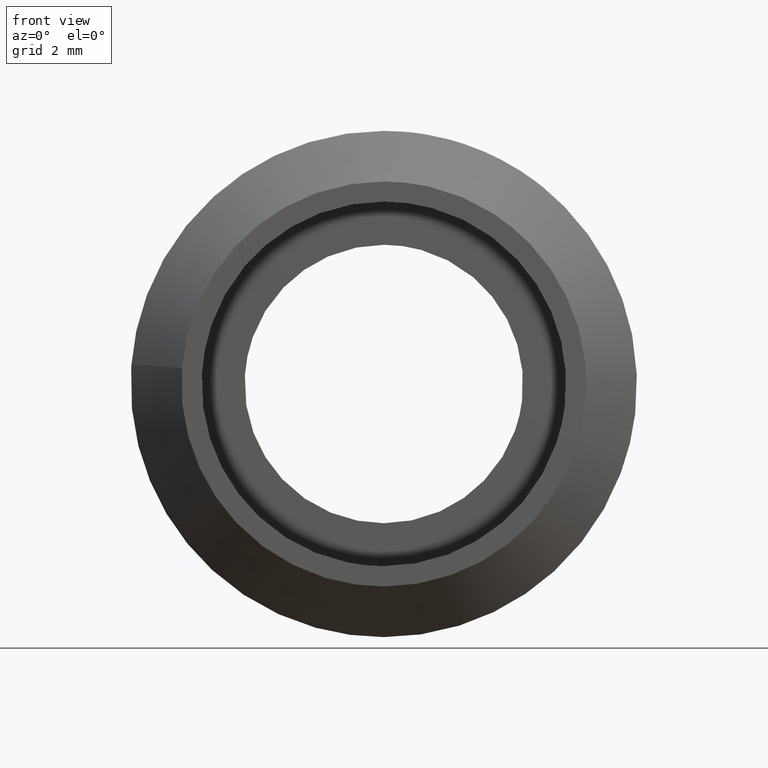
[diagram: clean part render]
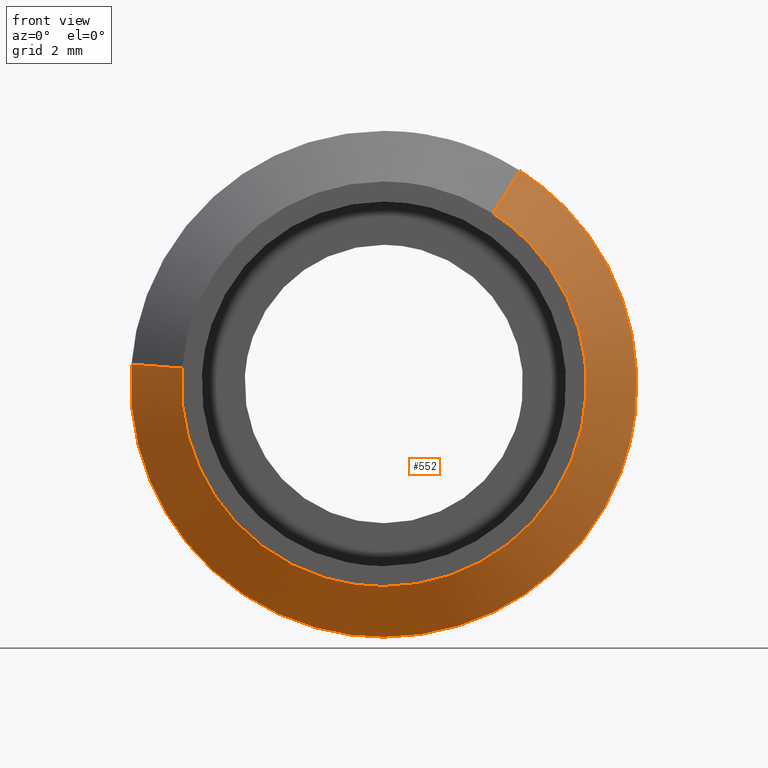
[diagram: same view with one face highlighted and labeled with its STEP entity id]
A machine part, front view. The second image highlights one B-rep face of the part: STEP entity #552.
In plain terms, the highlighted face is a freeform B-spline surface patch.
Its self-contained STEP definition (entity closure, byte-faithful):
#416=CARTESIAN_POINT('',(2.137956903948658,-2.025000000000000,3.351084194235985));
#417=CARTESIAN_POINT('',(4.150001045183442,-2.025000000000000,2.067420933789887));
#418=CARTESIAN_POINT('',(3.962746401589181,-2.025000000000000,-0.311874905518186));
#419=CARTESIAN_POINT('',(3.650871496070995,-2.025000000000000,-4.274621307107368));
#420=CARTESIAN_POINT('',(-0.311874905518185,-2.025000000000000,-3.962746401589181));
#421=CARTESIAN_POINT('',(-4.274621307107365,-2.025000000000000,-3.650871496070994));
#422=CARTESIAN_POINT('',(-3.962746401589180,-2.025000000000000,0.311874905518186));
#423=CARTESIAN_POINT('',(2.703036393813077,-0.974375000000000,4.236803145574145));
#424=CARTESIAN_POINT('',(5.246880252251582,-0.974375000000000,2.613857190032152));
#425=CARTESIAN_POINT('',(5.010132675342550,-0.974375000000000,-0.394305992967254));
#426=CARTESIAN_POINT('',(4.615826682375297,-0.974375000000000,-5.404438668309802));
#427=CARTESIAN_POINT('',(-0.394305992967253,-0.974375000000000,-5.010132675342550));
#428=CARTESIAN_POINT('',(-5.404438668309802,-0.974375000000000,-4.615826682375296));
#429=CARTESIAN_POINT('',(-5.010132675342549,-0.974375000000000,0.394305992967254));
#437=(BOUNDED_SURFACE()B_SPLINE_SURFACE(2,1,((#416,#423),(#417,#424),(#418,#425),(#419,#426),(#420,#427),(#421,#428),(#422,#429)),.UNSPECIFIED.,.F.,.F.,.U.)B_SPLINE_SURFACE_WITH_KNOTS((3,2,2,3),(2,2),(0.0,5.662175133571495,13.988903271176641,22.315631408781769),(0.0,1.0),.UNSPECIFIED.)GEOMETRIC_REPRESENTATION_ITEM()RATIONAL_B_SPLINE_SURFACE(((0.872532871172386,0.872532871172386),(0.800832611206852,0.800832611206852),(1.0,1.0),(0.707106781186548,0.707106781186548),(1.0,1.0),(0.707106781186548,0.707106781186548),(1.0,1.0)))REPRESENTATION_ITEM('')SURFACE());
#438=CARTESIAN_POINT('',(4.965048002999415,-1.000000000000000,-0.590168050559857));
#439=VERTEX_POINT('',#438);
#440=CARTESIAN_POINT('',(2.689253967231708,-0.999999999999958,4.215200244321606));
#441=VERTEX_POINT('',#440);
#442=CARTESIAN_POINT('',(4.965048002999415,-1.000000000000000,-0.590168050559856));
#443=CARTESIAN_POINT('',(5.000000000000001,-1.0,-0.296119020391211));
#444=CARTESIAN_POINT('',(5.000000000000001,-1.0,0.0));
#445=CARTESIAN_POINT('',(5.000000000000002,-1.0,2.740968280072530));
#446=CARTESIAN_POINT('',(2.689253967231708,-0.999999999999958,4.215200244321607));
#454=(BOUNDED_CURVE()B_SPLINE_CURVE(2,(#442,#443,#444,#445,#446),.UNSPECIFIED.,.F.,.U.)B_SPLINE_CURVE_WITH_KNOTS((3,2,3),(0.229562579808786,0.250000000000000,0.407950112627522),.UNSPECIFIED.)CURVE()GEOMETRIC_REPRESENTATION_ITEM()RATIONAL_B_SPLINE_CURVE((0.956026962526900,0.976056072863809,1.0,0.814949932402312,0.863729296954906))REPRESENTATION_ITEM(''));
#455=EDGE_CURVE('',#439,#441,#454,.T.);
#456=ORIENTED_EDGE('',*,*,#455,.T.);
#457=CARTESIAN_POINT('',(2.151403173784936,-1.999999999999992,3.372160195457528));
#458=VERTEX_POINT('',#457);
#459=CARTESIAN_POINT('',(2.151403173784936,-1.999999999999992,3.372160195457528));
#460=CARTESIAN_POINT('',(2.689253967231708,-0.999999999999958,4.215200244321606));
#461=QUASI_UNIFORM_CURVE('',1,(#459,#460),.UNSPECIFIED.,.F.,.U.);
#462=EDGE_CURVE('',#458,#441,#461,.T.);
#463=ORIENTED_EDGE('',*,*,#462,.F.);
#464=CARTESIAN_POINT('',(4.898425E-016,-2.0,-4.0));
#465=VERTEX_POINT('',#464);
#466=CARTESIAN_POINT('',(4.898425E-016,-2.0,-4.0));
#467=CARTESIAN_POINT('',(4.000000000000001,-2.000000000000000,-4.000000000000000));
#468=CARTESIAN_POINT('',(4.000000000000001,-2.0,0.0));
#469=CARTESIAN_POINT('',(4.000000000000001,-2.000000000000000,2.192774624058669));
#470=CARTESIAN_POINT('',(2.151403173784936,-1.999999999999992,3.372160195457528));
#478=(BOUNDED_CURVE()B_SPLINE_CURVE(2,(#466,#467,#468,#469,#470),.UNSPECIFIED.,.F.,.U.)B_SPLINE_CURVE_WITH_KNOTS((3,2,3),(0.0,0.250000000000000,0.407950112627559),.UNSPECIFIED.)CURVE()GEOMETRIC_REPRESENTATION_ITEM()RATIONAL_B_SPLINE_CURVE((1.0,0.707106781186548,1.0,0.814949932402267,0.863729296954929))REPRESENTATION_ITEM(''));
#479=EDGE_CURVE('',#465,#458,#478,.T.);
#480=ORIENTED_EDGE('',*,*,#479,.F.);
#481=CARTESIAN_POINT('',(-3.987669334932839,-1.999999999999178,0.313836382917689));
#482=VERTEX_POINT('',#481);
#483=CARTESIAN_POINT('',(-3.987669334932839,-1.999999999999178,0.313836382917689));
#484=CARTESIAN_POINT('',(-3.999999999999999,-2.000000000000000,0.157160428036951));
#485=CARTESIAN_POINT('',(-3.999999999999999,-2.0,0.0));
#486=CARTESIAN_POINT('',(-4.000000000000000,-2.000000000000000,-4.000000000000000));
#487=CARTESIAN_POINT('',(4.898425E-016,-2.0,-4.0));
#495=(BOUNDED_CURVE()B_SPLINE_CURVE(2,(#483,#484,#485,#486,#487),.UNSPECIFIED.,.F.,.U.)B_SPLINE_CURVE_WITH_KNOTS((3,2,3),(0.736331300632230,0.750000000000000,1.0),.UNSPECIFIED.)CURVE()GEOMETRIC_REPRESENTATION_ITEM()RATIONAL_B_SPLINE_CURVE((0.969723356170695,0.983986122580722,1.0,0.707106781186548,1.0))REPRESENTATION_ITEM(''));
#496=EDGE_CURVE('',#482,#465,#495,.T.);
#497=ORIENTED_EDGE('',*,*,#496,.F.);
#498=CARTESIAN_POINT('',(-4.984586668665754,-0.999999999999709,0.392295478641466));
#499=VERTEX_POINT('',#498);
#500=CARTESIAN_POINT('',(-3.987669334932839,-1.999999999999178,0.313836382917689));
#501=CARTESIAN_POINT('',(-4.984586668665754,-0.999999999999709,0.392295478641466));
#502=QUASI_UNIFORM_CURVE('',1,(#500,#501),.UNSPECIFIED.,.F.,.U.);
#503=EDGE_CURVE('',#482,#499,#502,.T.);
#504=ORIENTED_EDGE('',*,*,#503,.T.);
#505=CARTESIAN_POINT('',(-4.990674099992544,-1.000000000000000,0.305240933789139));
#506=VERTEX_POINT('',#505);
#507=CARTESIAN_POINT('',(-4.984586668665754,-0.999999999999709,0.392295478641466));
#508=CARTESIAN_POINT('',(-4.988010248773502,-1.0,0.348794768858520));
#509=CARTESIAN_POINT('',(-4.990674099992544,-1.000000000000000,0.305240933789139));
#517=(BOUNDED_CURVE()B_SPLINE_CURVE(2,(#507,#508,#509),.UNSPECIFIED.,.F.,.U.)B_SPLINE_CURVE_WITH_KNOTS((3,3),(0.736331300632614,0.739333023226263),.UNSPECIFIED.)CURVE()GEOMETRIC_REPRESENTATION_ITEM()RATIONAL_B_SPLINE_CURVE((0.969723356171497,0.972855539199972,0.976072172374189))REPRESENTATION_ITEM(''));
#518=EDGE_CURVE('',#499,#506,#517,.T.);
#519=ORIENTED_EDGE('',*,*,#518,.T.);
#520=CARTESIAN_POINT('',(4.898425E-016,-1.0,-5.0));
#521=VERTEX_POINT('',#520);
#522=CARTESIAN_POINT('',(-4.990674099992544,-1.000000000000000,0.305240933789139));
#523=CARTESIAN_POINT('',(-4.999999999999999,-1.0,0.152762932077514));
#524=CARTESIAN_POINT('',(-4.999999999999999,-1.0,0.0));
#525=CARTESIAN_POINT('',(-4.999999999999998,-1.0,-5.000000000000001));
#526=CARTESIAN_POINT('',(4.898425E-016,-1.0,-5.0));
#534=(BOUNDED_CURVE()B_SPLINE_CURVE(2,(#522,#523,#524,#525,#526),.UNSPECIFIED.,.F.,.U.)B_SPLINE_CURVE_WITH_KNOTS((3,2,3),(0.739333023226263,0.750000000000000,1.0),.UNSPECIFIED.)CURVE()GEOMETRIC_REPRESENTATION_ITEM()RATIONAL_B_SPLINE_CURVE((0.976072172374189,0.987502859350927,1.0,0.707106781186548,1.0))REPRESENTATION_ITEM(''));
#535=EDGE_CURVE('',#506,#521,#534,.T.);
#536=ORIENTED_EDGE('',*,*,#535,.T.);
#537=CARTESIAN_POINT('',(4.898425E-016,-1.0,-5.0));
#538=CARTESIAN_POINT('',(4.440875442468178,-1.0,-5.0));
#539=CARTESIAN_POINT('',(4.965048002999415,-1.000000000000000,-0.590168050559856));
#547=(BOUNDED_CURVE()B_SPLINE_CURVE(2,(#537,#538,#539),.UNSPECIFIED.,.F.,.U.)B_SPLINE_CURVE_WITH_KNOTS((3,3),(0.0,0.229562579808786),.UNSPECIFIED.)CURVE()GEOMETRIC_REPRESENTATION_ITEM()RATIONAL_B_SPLINE_CURVE((1.0,0.731050708322738,0.956026962526900))REPRESENTATION_ITEM(''));
#548=EDGE_CURVE('',#521,#439,#547,.T.);
#549=ORIENTED_EDGE('',*,*,#548,.T.);
#550=EDGE_LOOP('',(#456,#463,#480,#497,#504,#519,#536,#549));
#551=FACE_OUTER_BOUND('',#550,.T.);
#552=ADVANCED_FACE('',(#551),#437,.T.);